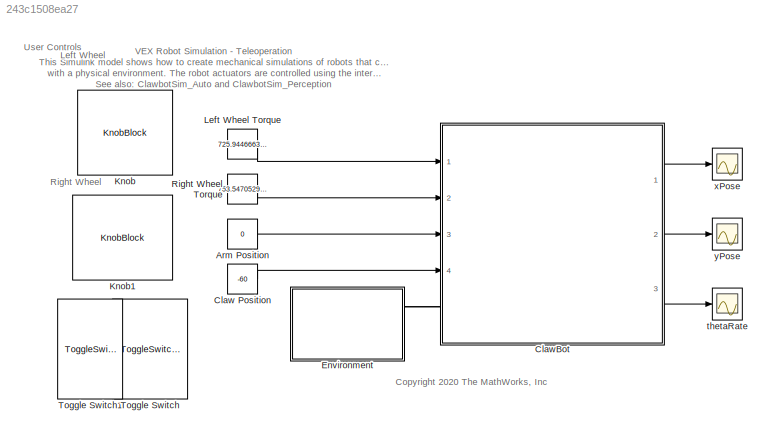
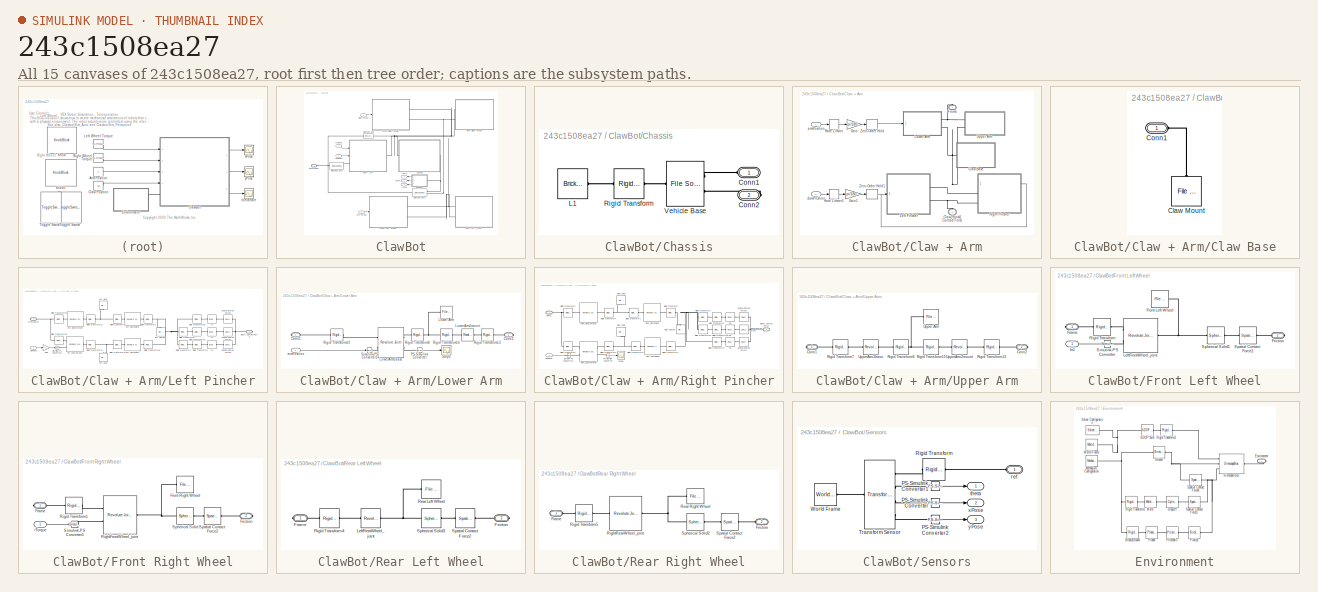
[diagram: thumbnail index - all 15 canvases of the model, root first then tree order]
MODEL slx_243c1508ea27
KIND model
CONFIG AbsTol = auto
CONFIG EnableMultiTasking = off
CONFIG FixedStep = auto
CONFIG MaxStep = auto
CONFIG MinStep = auto
CONFIG RelTol = 1e-3
CONFIG SampleTimeConstraint = Unconstrained
CONFIG Solver = VariableStepAuto
CONFIG SolverName = VariableStepAuto
CONFIG StartTime = 0.0
CONFIG StopTime = 10.0
BLOCK [Constant] Arm Position
  Value = 0
BLOCK [Constant] Claw Position
  Value = -60
BLOCK [SubSystem] ClawBot
  Ports = [4, 3, 0, 0, 0, 1]
  RequestExecContextInheritance = off
BLOCK [SubSystem] ClawBot/Chassis
  Ports = [0, 0, 0, 0, 0, 1, 1]
  RequestExecContextInheritance = off
BLOCK [PMIOPort] ClawBot/Chassis/Conn1
  Side = Left
BLOCK [PMIOPort] ClawBot/Chassis/Conn2
  Port = 2
  Side = Right
BLOCK [Reference] ClawBot/Chassis/L1  REF=sm_lib/Body Elements/Brick Solid
  Ports = [0, 0, 0, 0, 0, 1]
  SourceBlock = sm_lib/Body Elements/Brick Solid
  SourceProductBaseCode = MS
  SourceProductName = Simscape Multibody
  SourceType = Brick Solid
BLOCK [Reference] ClawBot/Chassis/Rigid Transform  REF=sm_lib/Frames and
Transforms/Rigid
Transform
  Ports = [0, 0, 0, 0, 0, 1, 1]
  SourceBlock = sm_lib/Frames and\nTransforms/Rigid\nTransform
  SourceProductBaseCode = MS
  SourceProductName = Simscape Multibody
  SourceType = Rigid\nTransform
BLOCK [Reference] ClawBot/Chassis/Vehicle Base  REF=sm_lib/Body Elements/File Solid
  Ports = [0, 0, 0, 0, 0, 2, 1]
  SourceBlock = sm_lib/Body Elements/File Solid
  SourceProductBaseCode = MS
  SourceProductName = Simscape Multibody
  SourceType = File Solid
BLOCK [SubSystem] ClawBot/Claw + Arm
  Ports = [2, 0, 0, 0, 0, 1, 1]
  RequestExecContextInheritance = off
BLOCK [SubSystem] ClawBot/Claw + Arm/Claw Base
  Ports = [0, 0, 0, 0, 0, 1]
  RequestExecContextInheritance = off
BLOCK [Reference] ClawBot/Claw + Arm/Claw Base/Claw Mount  REF=sm_lib/Body Elements/File Solid
  Ports = [0, 0, 0, 0, 0, 1]
  SourceBlock = sm_lib/Body Elements/File Solid
  SourceProductBaseCode = MS
  SourceProductName = Simscape Multibody
  SourceType = File Solid
BLOCK [PMIOPort] ClawBot/Claw + Arm/Claw Base/Conn1
  Side = Left
BLOCK [PMIOPort] ClawBot/Claw + Arm/Claw2Block1 Contact Force
  Side = Left
BLOCK [PMIOPort] ClawBot/Claw + Arm/Frame
  Port = 2
  Side = Right
BLOCK [Gain] ClawBot/Claw + Arm/Gain
  Gain = pi/180
  OutDataTypeStr = Inherit: Inherit via internal rule
  ParamDataTypeStr = Inherit: Inherit via internal rule
  SaturateOnIntegerOverflow = off
BLOCK [Gain] ClawBot/Claw + Arm/Gain1
  Gain = pi/180
  OutDataTypeStr = Inherit: Inherit via internal rule
  ParamDataTypeStr = Inherit: Inherit via internal rule
  SaturateOnIntegerOverflow = off
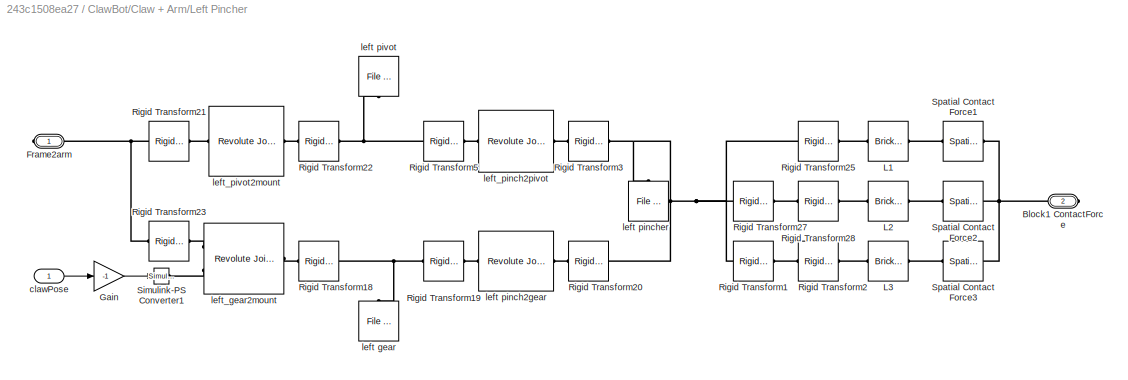
BLOCK [SubSystem] ClawBot/Claw + Arm/Left Pincher
  Ports = [1, 0, 0, 0, 0, 0, 2]
  RequestExecContextInheritance = off
BLOCK [PMIOPort] ClawBot/Claw + Arm/Left Pincher/Block1 ContactForce
  Port = 2
  Side = Right
BLOCK [PMIOPort] ClawBot/Claw + Arm/Left Pincher/Frame2arm
  Side = Right
BLOCK [Gain] ClawBot/Claw + Arm/Left Pincher/Gain
  Gain = -1
  OutDataTypeStr = Inherit: Inherit via internal rule
  ParamDataTypeStr = Inherit: Inherit via internal rule
  SaturateOnIntegerOverflow = off
BLOCK [Reference] ClawBot/Claw + Arm/Left Pincher/L1  REF=sm_lib/Body Elements/Brick Solid
  Ports = [0, 0, 0, 0, 0, 1, 1]
  SourceBlock = sm_lib/Body Elements/Brick Solid
  SourceProductBaseCode = MS
  SourceProductName = Simscape Multibody
  SourceType = Brick Solid
BLOCK [Reference] ClawBot/Claw + Arm/Left Pincher/L2  REF=sm_lib/Body Elements/Brick Solid
  Ports = [0, 0, 0, 0, 0, 1, 1]
  SourceBlock = sm_lib/Body Elements/Brick Solid
  SourceProductBaseCode = MS
  SourceProductName = Simscape Multibody
  SourceType = Brick Solid
BLOCK [Reference] ClawBot/Claw + Arm/Left Pincher/L3  REF=sm_lib/Body Elements/Brick Solid
  Ports = [0, 0, 0, 0, 0, 1, 1]
  SourceBlock = sm_lib/Body Elements/Brick Solid
  SourceProductBaseCode = MS
  SourceProductName = Simscape Multibody
  SourceType = Brick Solid
BLOCK [Reference] ClawBot/Claw + Arm/Left Pincher/Rigid Transform1  REF=sm_lib/Frames and
Transforms/Rigid
Transform
  Ports = [0, 0, 0, 0, 0, 1, 1]
  SourceBlock = sm_lib/Frames and\nTransforms/Rigid\nTransform
  SourceProductBaseCode = MS
  SourceProductName = Simscape Multibody
  SourceType = Rigid\nTransform
BLOCK [Reference] ClawBot/Claw + Arm/Left Pincher/Rigid Transform18  REF=sm_lib/Frames and
Transforms/Rigid
Transform
  Ports = [0, 0, 0, 0, 0, 1, 1]
  SourceBlock = sm_lib/Frames and\nTransforms/Rigid\nTransform
  SourceProductBaseCode = MS
  SourceProductName = Simscape Multibody
  SourceType = Rigid\nTransform
BLOCK [Reference] ClawBot/Claw + Arm/Left Pincher/Rigid Transform19  REF=sm_lib/Frames and
Transforms/Rigid
Transform
  Ports = [0, 0, 0, 0, 0, 1, 1]
  SourceBlock = sm_lib/Frames and\nTransforms/Rigid\nTransform
  SourceProductBaseCode = MS
  SourceProductName = Simscape Multibody
  SourceType = Rigid\nTransform
BLOCK [Reference] ClawBot/Claw + Arm/Left Pincher/Rigid Transform2  REF=sm_lib/Frames and
Transforms/Rigid
Transform
  Ports = [0, 0, 0, 0, 0, 1, 1]
  SourceBlock = sm_lib/Frames and\nTransforms/Rigid\nTransform
  SourceProductBaseCode = MS
  SourceProductName = Simscape Multibody
  SourceType = Rigid\nTransform
BLOCK [Reference] ClawBot/Claw + Arm/Left Pincher/Rigid Transform20  REF=sm_lib/Frames and
Transforms/Rigid
Transform
  Ports = [0, 0, 0, 0, 0, 1, 1]
  SourceBlock = sm_lib/Frames and\nTransforms/Rigid\nTransform
  SourceProductBaseCode = MS
  SourceProductName = Simscape Multibody
  SourceType = Rigid\nTransform
BLOCK [Reference] ClawBot/Claw + Arm/Left Pincher/Rigid Transform21  REF=sm_lib/Frames and
Transforms/Rigid
Transform
  Ports = [0, 0, 0, 0, 0, 1, 1]
  SourceBlock = sm_lib/Frames and\nTransforms/Rigid\nTransform
  SourceProductBaseCode = MS
  SourceProductName = Simscape Multibody
  SourceType = Rigid\nTransform
BLOCK [Reference] ClawBot/Claw + Arm/Left Pincher/Rigid Transform22  REF=sm_lib/Frames and
Transforms/Rigid
Transform
  Ports = [0, 0, 0, 0, 0, 1, 1]
  SourceBlock = sm_lib/Frames and\nTransforms/Rigid\nTransform
  SourceProductBaseCode = MS
  SourceProductName = Simscape Multibody
  SourceType = Rigid\nTransform
BLOCK [Reference] ClawBot/Claw + Arm/Left Pincher/Rigid Transform23  REF=sm_lib/Frames and
Transforms/Rigid
Transform
  Ports = [0, 0, 0, 0, 0, 1, 1]
  SourceBlock = sm_lib/Frames and\nTransforms/Rigid\nTransform
  SourceProductBaseCode = MS
  SourceProductName = Simscape Multibody
  SourceType = Rigid\nTransform
BLOCK [Reference] ClawBot/Claw + Arm/Left Pincher/Rigid Transform25  REF=sm_lib/Frames and
Transforms/Rigid
Transform
  Ports = [0, 0, 0, 0, 0, 1, 1]
  SourceBlock = sm_lib/Frames and\nTransforms/Rigid\nTransform
  SourceProductBaseCode = MS
  SourceProductName = Simscape Multibody
  SourceType = Rigid\nTransform
BLOCK [Reference] ClawBot/Claw + Arm/Left Pincher/Rigid Transform27  REF=sm_lib/Frames and
Transforms/Rigid
Transform
  Ports = [0, 0, 0, 0, 0, 1, 1]
  SourceBlock = sm_lib/Frames and\nTransforms/Rigid\nTransform
  SourceProductBaseCode = MS
  SourceProductName = Simscape Multibody
  SourceType = Rigid\nTransform
BLOCK [Reference] ClawBot/Claw + Arm/Left Pincher/Rigid Transform28  REF=sm_lib/Frames and
Transforms/Rigid
Transform
  Ports = [0, 0, 0, 0, 0, 1, 1]
  SourceBlock = sm_lib/Frames and\nTransforms/Rigid\nTransform
  SourceProductBaseCode = MS
  SourceProductName = Simscape Multibody
  SourceType = Rigid\nTransform
BLOCK [Reference] ClawBot/Claw + Arm/Left Pincher/Rigid Transform3  REF=sm_lib/Frames and
Transforms/Rigid
Transform
  Ports = [0, 0, 0, 0, 0, 1, 1]
  SourceBlock = sm_lib/Frames and\nTransforms/Rigid\nTransform
  SourceProductBaseCode = MS
  SourceProductName = Simscape Multibody
  SourceType = Rigid\nTransform
BLOCK [Reference] ClawBot/Claw + Arm/Left Pincher/Rigid Transform5  REF=sm_lib/Frames and
Transforms/Rigid
Transform
  Ports = [0, 0, 0, 0, 0, 1, 1]
  SourceBlock = sm_lib/Frames and\nTransforms/Rigid\nTransform
  SourceProductBaseCode = MS
  SourceProductName = Simscape Multibody
  SourceType = Rigid\nTransform
BLOCK [Reference] ClawBot/Claw + Arm/Left Pincher/Simulink-PS Converter1  REF=nesl_utility/Simulink-PS
Converter
  Ports = [1, 0, 0, 0, 0, 0, 1]
  SourceBlock = nesl_utility/Simulink-PS\nConverter
  SourceProductBaseCode = SS
  SourceProductName = Simscape
  SourceType = Simulink-PS\nConverter
BLOCK [Reference] ClawBot/Claw + Arm/Left Pincher/Spatial Contact Force1  REF=sm_lib/Forces and
Torques/Spatial
Contact Force
  Ports = [0, 0, 0, 0, 0, 1, 1]
  SourceBlock = sm_lib/Forces and\nTorques/Spatial\nContact Force
  SourceProductBaseCode = MS
  SourceProductName = Simscape Multibody
  SourceType = Spatial\nContact Force
BLOCK [Reference] ClawBot/Claw + Arm/Left Pincher/Spatial Contact Force2  REF=sm_lib/Forces and
Torques/Spatial
Contact Force
  Ports = [0, 0, 0, 0, 0, 1, 1]
  SourceBlock = sm_lib/Forces and\nTorques/Spatial\nContact Force
  SourceProductBaseCode = MS
  SourceProductName = Simscape Multibody
  SourceType = Spatial\nContact Force
BLOCK [Reference] ClawBot/Claw + Arm/Left Pincher/Spatial Contact Force3  REF=sm_lib/Forces and
Torques/Spatial
Contact Force
  Ports = [0, 0, 0, 0, 0, 1, 1]
  SourceBlock = sm_lib/Forces and\nTorques/Spatial\nContact Force
  SourceProductBaseCode = MS
  SourceProductName = Simscape Multibody
  SourceType = Spatial\nContact Force
BLOCK [Inport] ClawBot/Claw + Arm/Left Pincher/clawPose
  IconDisplay = Port number
BLOCK [Reference] ClawBot/Claw + Arm/Left Pincher/left gear  REF=sm_lib/Body Elements/File Solid
  Ports = [0, 0, 0, 0, 0, 1]
  SourceBlock = sm_lib/Body Elements/File Solid
  SourceProductBaseCode = MS
  SourceProductName = Simscape Multibody
  SourceType = File Solid
BLOCK [Reference] ClawBot/Claw + Arm/Left Pincher/left pinch2gear  REF=sm_lib/Joints/Revolute Joint
  Ports = [0, 0, 0, 0, 0, 1, 1]
  SourceBlock = sm_lib/Joints/Revolute Joint
  SourceProductBaseCode = MS
  SourceProductName = Simscape Multibody
  SourceType = Revolute Joint
BLOCK [Reference] ClawBot/Claw + Arm/Left Pincher/left pincher  REF=sm_lib/Body Elements/File Solid
  Ports = [0, 0, 0, 0, 0, 1]
  SourceBlock = sm_lib/Body Elements/File Solid
  SourceProductBaseCode = MS
  SourceProductName = Simscape Multibody
  SourceType = File Solid
BLOCK [Reference] ClawBot/Claw + Arm/Left Pincher/left pivot  REF=sm_lib/Body Elements/File Solid
  Ports = [0, 0, 0, 0, 0, 1]
  SourceBlock = sm_lib/Body Elements/File Solid
  SourceProductBaseCode = MS
  SourceProductName = Simscape Multibody
  SourceType = File Solid
BLOCK [Reference] ClawBot/Claw + Arm/Left Pincher/left_gear2mount  REF=sm_lib/Joints/Revolute Joint
  Ports = [0, 0, 0, 0, 0, 2, 1]
  SourceBlock = sm_lib/Joints/Revolute Joint
  SourceProductBaseCode = MS
  SourceProductName = Simscape Multibody
  SourceType = Revolute Joint
BLOCK [Reference] ClawBot/Claw + Arm/Left Pincher/left_pinch2pivot  REF=sm_lib/Joints/Revolute Joint
  Ports = [0, 0, 0, 0, 0, 1, 1]
  SourceBlock = sm_lib/Joints/Revolute Joint
  SourceProductBaseCode = MS
  SourceProductName = Simscape Multibody
  SourceType = Revolute Joint
BLOCK [Reference] ClawBot/Claw + Arm/Left Pincher/left_pivot2mount  REF=sm_lib/Joints/Revolute Joint
  Ports = [0, 0, 0, 0, 0, 1, 1]
  SourceBlock = sm_lib/Joints/Revolute Joint
  SourceProductBaseCode = MS
  SourceProductName = Simscape Multibody
  SourceType = Revolute Joint
BLOCK [SubSystem] ClawBot/Claw + Arm/Lower Arm
  Ports = [1, 0, 0, 0, 0, 0, 2]
  RequestExecContextInheritance = off
BLOCK [PMIOPort] ClawBot/Claw + Arm/Lower Arm/Conn1
  Side = Right
BLOCK [PMIOPort] ClawBot/Claw + Arm/Lower Arm/Conn2
  Port = 2
  Side = Right
BLOCK [Reference] ClawBot/Claw + Arm/Lower Arm/Lower Arm  REF=sm_lib/Body Elements/File Solid
  Ports = [0, 0, 0, 0, 0, 1]
  SourceBlock = sm_lib/Body Elements/File Solid
  SourceProductBaseCode = MS
  SourceProductName = Simscape Multibody
  SourceType = File Solid
BLOCK [Reference] ClawBot/Claw + Arm/Lower Arm/LowerArm2base  REF=sm_lib/Joints/Revolute Joint
  Ports = [0, 0, 0, 0, 0, 2, 2]
  SourceBlock = sm_lib/Joints/Revolute Joint
  SourceProductBaseCode = MS
  SourceProductName = Simscape Multibody
  SourceType = Revolute Joint
BLOCK [Reference] ClawBot/Claw + Arm/Lower Arm/LowerArm2mount  REF=sm_lib/Joints/Revolute Joint
  Ports = [0, 0, 0, 0, 0, 1, 1]
  SourceBlock = sm_lib/Joints/Revolute Joint
  SourceProductBaseCode = MS
  SourceProductName = Simscape Multibody
  SourceType = Revolute Joint
BLOCK [Reference] ClawBot/Claw + Arm/Lower Arm/PS-Simulink Converter  REF=nesl_utility/PS-Simulink
Converter
  Ports = [0, 1, 0, 0, 0, 1]
  SourceBlock = nesl_utility/PS-Simulink\nConverter
  SourceProductBaseCode = SS
  SourceProductName = Simscape
  SourceType = PS-Simulink\nConverter
BLOCK [Reference] ClawBot/Claw + Arm/Lower Arm/Rigid Transform10  REF=sm_lib/Frames and
Transforms/Rigid
Transform
  Ports = [0, 0, 0, 0, 0, 1, 1]
  SourceBlock = sm_lib/Frames and\nTransforms/Rigid\nTransform
  SourceProductBaseCode = MS
  SourceProductName = Simscape Multibody
  SourceType = Rigid\nTransform
BLOCK [Reference] ClawBot/Claw + Arm/Lower Arm/Rigid Transform13  REF=sm_lib/Frames and
Transforms/Rigid
Transform
  Ports = [0, 0, 0, 0, 0, 1, 1]
  SourceBlock = sm_lib/Frames and\nTransforms/Rigid\nTransform
  SourceProductBaseCode = MS
  SourceProductName = Simscape Multibody
  SourceType = Rigid\nTransform
BLOCK [Reference] ClawBot/Claw + Arm/Lower Arm/Rigid Transform16  REF=sm_lib/Frames and
Transforms/Rigid
Transform
  Ports = [0, 0, 0, 0, 0, 1, 1]
  SourceBlock = sm_lib/Frames and\nTransforms/Rigid\nTransform
  SourceProductBaseCode = MS
  SourceProductName = Simscape Multibody
  SourceType = Rigid\nTransform
BLOCK [Reference] ClawBot/Claw + Arm/Lower Arm/Rigid Transform9  REF=sm_lib/Frames and
Transforms/Rigid
Transform
  Ports = [0, 0, 0, 0, 0, 1, 1]
  SourceBlock = sm_lib/Frames and\nTransforms/Rigid\nTransform
  SourceProductBaseCode = MS
  SourceProductName = Simscape Multibody
  SourceType = Rigid\nTransform
BLOCK [Scope] ClawBot/Claw + Arm/Lower Arm/Scope
  Floating = off
  NumInputPorts = 1
  Ports = [1]
  ScopeSpecificationString = Simulink.scopes.TimeScopeBlockCfg('CurrentConfiguration', extmgr.ConfigurationSet(extmgr.Configuration('Core','General UI',true),extmgr.Configuration('Core','Source UI',true),extmgr.Configuration('Sources','WiredSimulink',true),extmgr.Configuration('Visuals','Time Domain',true,'SerializedDisplays',{struct('MinYLimReal','-113.24614','MaxYLimReal','845.52442','YLabelReal','','MinYLimMag',' 0.00000',...<+1382ch>
BLOCK [Reference] ClawBot/Claw + Arm/Lower Arm/Simulink-PS Converter2  REF=nesl_utility/Simulink-PS
Converter
  Ports = [1, 0, 0, 0, 0, 0, 1]
  SourceBlock = nesl_utility/Simulink-PS\nConverter
  SourceProductBaseCode = SS
  SourceProductName = Simscape
  SourceType = Simulink-PS\nConverter
BLOCK [Inport] ClawBot/Claw + Arm/Lower Arm/armPosition
  IconDisplay = Port number
BLOCK [RateLimiter] ClawBot/Claw + Arm/Rate Limiter
  FallingSlewLimit = -25
  RisingSlewLimit = 25
  SampleTimeMode = inherited
BLOCK [RateLimiter] ClawBot/Claw + Arm/Rate Limiter1
  FallingSlewLimit = -1000
  RisingSlewLimit = 1000
  SampleTimeMode = inherited
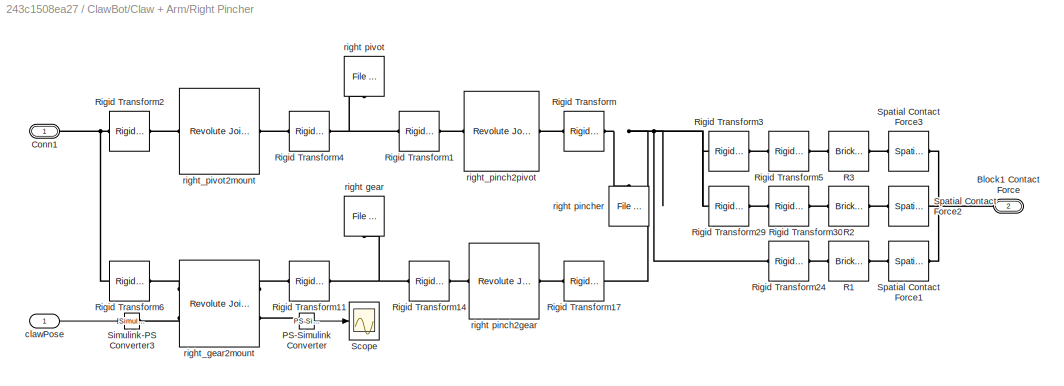
BLOCK [SubSystem] ClawBot/Claw + Arm/Right Pincher
  PortSchema = {"entries":[{"content":{"sides":[{"content":{"connectorIds":["LConn1","LConn2"]},"type":"ConnectorPlacement.EquallySpacedRectSide","uuid":"c31b3bd7-e4f0-40c1-8d05-2dd0f52601d0"},{"content":{"connectorIds":["In1"],"side":"RIGHT"},"type":"ConnectorPlacement.EquallySpacedRectSide","uuid":"b782f98b-67c6-482a-abad-dffd6dc88c6a"},{"content":{"connectorIds":[],"side":"TOP"},"type":"ConnectorPlacement.Equ...<+253ch>
  Ports = [1, 0, 0, 0, 0, 2]
  RequestExecContextInheritance = off
BLOCK [PMIOPort] ClawBot/Claw + Arm/Right Pincher/Block1 Contact Force
  Port = 2
  Side = Left
BLOCK [PMIOPort] ClawBot/Claw + Arm/Right Pincher/Conn1
  Side = Left
BLOCK [Reference] ClawBot/Claw + Arm/Right Pincher/PS-Simulink Converter  REF=nesl_utility/PS-Simulink
Converter
  Ports = [0, 1, 0, 0, 0, 1]
  SourceBlock = nesl_utility/PS-Simulink\nConverter
  SourceProductBaseCode = SS
  SourceProductName = Simscape
  SourceType = PS-Simulink\nConverter
BLOCK [Reference] ClawBot/Claw + Arm/Right Pincher/R1  REF=sm_lib/Body Elements/Brick Solid
  Ports = [0, 0, 0, 0, 0, 1, 1]
  SourceBlock = sm_lib/Body Elements/Brick Solid
  SourceProductBaseCode = MS
  SourceProductName = Simscape Multibody
  SourceType = Brick Solid
BLOCK [Reference] ClawBot/Claw + Arm/Right Pincher/R2  REF=sm_lib/Body Elements/Brick Solid
  Ports = [0, 0, 0, 0, 0, 1, 1]
  SourceBlock = sm_lib/Body Elements/Brick Solid
  SourceProductBaseCode = MS
  SourceProductName = Simscape Multibody
  SourceType = Brick Solid
BLOCK [Reference] ClawBot/Claw + Arm/Right Pincher/R3  REF=sm_lib/Body Elements/Brick Solid
  Ports = [0, 0, 0, 0, 0, 1, 1]
  SourceBlock = sm_lib/Body Elements/Brick Solid
  SourceProductBaseCode = MS
  SourceProductName = Simscape Multibody
  SourceType = Brick Solid
BLOCK [Reference] ClawBot/Claw + Arm/Right Pincher/Rigid Transform  REF=sm_lib/Frames and
Transforms/Rigid
Transform
  Ports = [0, 0, 0, 0, 0, 1, 1]
  SourceBlock = sm_lib/Frames and\nTransforms/Rigid\nTransform
  SourceProductBaseCode = MS
  SourceProductName = Simscape Multibody
  SourceType = Rigid\nTransform
BLOCK [Reference] ClawBot/Claw + Arm/Right Pincher/Rigid Transform1  REF=sm_lib/Frames and
Transforms/Rigid
Transform
  Ports = [0, 0, 0, 0, 0, 1, 1]
  SourceBlock = sm_lib/Frames and\nTransforms/Rigid\nTransform
  SourceProductBaseCode = MS
  SourceProductName = Simscape Multibody
  SourceType = Rigid\nTransform
BLOCK [Reference] ClawBot/Claw + Arm/Right Pincher/Rigid Transform11  REF=sm_lib/Frames and
Transforms/Rigid
Transform
  Ports = [0, 0, 0, 0, 0, 1, 1]
  SourceBlock = sm_lib/Frames and\nTransforms/Rigid\nTransform
  SourceProductBaseCode = MS
  SourceProductName = Simscape Multibody
  SourceType = Rigid\nTransform
BLOCK [Reference] ClawBot/Claw + Arm/Right Pincher/Rigid Transform14  REF=sm_lib/Frames and
Transforms/Rigid
Transform
  Ports = [0, 0, 0, 0, 0, 1, 1]
  SourceBlock = sm_lib/Frames and\nTransforms/Rigid\nTransform
  SourceProductBaseCode = MS
  SourceProductName = Simscape Multibody
  SourceType = Rigid\nTransform
BLOCK [Reference] ClawBot/Claw + Arm/Right Pincher/Rigid Transform17  REF=sm_lib/Frames and
Transforms/Rigid
Transform
  Ports = [0, 0, 0, 0, 0, 1, 1]
  SourceBlock = sm_lib/Frames and\nTransforms/Rigid\nTransform
  SourceProductBaseCode = MS
  SourceProductName = Simscape Multibody
  SourceType = Rigid\nTransform
BLOCK [Reference] ClawBot/Claw + Arm/Right Pincher/Rigid Transform2  REF=sm_lib/Frames and
Transforms/Rigid
Transform
  Ports = [0, 0, 0, 0, 0, 1, 1]
  SourceBlock = sm_lib/Frames and\nTransforms/Rigid\nTransform
  SourceProductBaseCode = MS
  SourceProductName = Simscape Multibody
  SourceType = Rigid\nTransform
BLOCK [Reference] ClawBot/Claw + Arm/Right Pincher/Rigid Transform24  REF=sm_lib/Frames and
Transforms/Rigid
Transform
  Ports = [0, 0, 0, 0, 0, 1, 1]
  SourceBlock = sm_lib/Frames and\nTransforms/Rigid\nTransform
  SourceProductBaseCode = MS
  SourceProductName = Simscape Multibody
  SourceType = Rigid\nTransform
BLOCK [Reference] ClawBot/Claw + Arm/Right Pincher/Rigid Transform29  REF=sm_lib/Frames and
Transforms/Rigid
Transform
  Ports = [0, 0, 0, 0, 0, 1, 1]
  SourceBlock = sm_lib/Frames and\nTransforms/Rigid\nTransform
  SourceProductBaseCode = MS
  SourceProductName = Simscape Multibody
  SourceType = Rigid\nTransform
BLOCK [Reference] ClawBot/Claw + Arm/Right Pincher/Rigid Transform3  REF=sm_lib/Frames and
Transforms/Rigid
Transform
  Ports = [0, 0, 0, 0, 0, 1, 1]
  SourceBlock = sm_lib/Frames and\nTransforms/Rigid\nTransform
  SourceProductBaseCode = MS
  SourceProductName = Simscape Multibody
  SourceType = Rigid\nTransform
BLOCK [Reference] ClawBot/Claw + Arm/Right Pincher/Rigid Transform30  REF=sm_lib/Frames and
Transforms/Rigid
Transform
  Ports = [0, 0, 0, 0, 0, 1, 1]
  SourceBlock = sm_lib/Frames and\nTransforms/Rigid\nTransform
  SourceProductBaseCode = MS
  SourceProductName = Simscape Multibody
  SourceType = Rigid\nTransform
BLOCK [Reference] ClawBot/Claw + Arm/Right Pincher/Rigid Transform4  REF=sm_lib/Frames and
Transforms/Rigid
Transform
  Ports = [0, 0, 0, 0, 0, 1, 1]
  SourceBlock = sm_lib/Frames and\nTransforms/Rigid\nTransform
  SourceProductBaseCode = MS
  SourceProductName = Simscape Multibody
  SourceType = Rigid\nTransform
BLOCK [Reference] ClawBot/Claw + Arm/Right Pincher/Rigid Transform5  REF=sm_lib/Frames and
Transforms/Rigid
Transform
  Ports = [0, 0, 0, 0, 0, 1, 1]
  SourceBlock = sm_lib/Frames and\nTransforms/Rigid\nTransform
  SourceProductBaseCode = MS
  SourceProductName = Simscape Multibody
  SourceType = Rigid\nTransform
BLOCK [Reference] ClawBot/Claw + Arm/Right Pincher/Rigid Transform6  REF=sm_lib/Frames and
Transforms/Rigid
Transform
  Ports = [0, 0, 0, 0, 0, 1, 1]
  SourceBlock = sm_lib/Frames and\nTransforms/Rigid\nTransform
  SourceProductBaseCode = MS
  SourceProductName = Simscape Multibody
  SourceType = Rigid\nTransform
BLOCK [Scope] ClawBot/Claw + Arm/Right Pincher/Scope
  Floating = off
  NumInputPorts = 1
  Ports = [1]
  ScopeSpecificationString = Simulink.scopes.TimeScopeBlockCfg('CurrentConfiguration', extmgr.ConfigurationSet(extmgr.Configuration('Core','General UI',true),extmgr.Configuration('Core','Source UI',true),extmgr.Configuration('Sources','WiredSimulink',true,'DataLoggingVariableName','ScopeData4'),extmgr.Configuration('Visuals','Time Domain',true,'SerializedDisplays',{struct('MinYLimReal','-826.00645','MaxYLimReal','891.95562','...<+1422ch>
BLOCK [Reference] ClawBot/Claw + Arm/Right Pincher/Simulink-PS Converter3  REF=nesl_utility/Simulink-PS
Converter
  Ports = [1, 0, 0, 0, 0, 0, 1]
  SourceBlock = nesl_utility/Simulink-PS\nConverter
  SourceProductBaseCode = SS
  SourceProductName = Simscape
  SourceType = Simulink-PS\nConverter
BLOCK [Reference] ClawBot/Claw + Arm/Right Pincher/Spatial Contact Force1  REF=sm_lib/Forces and
Torques/Spatial
Contact Force
  Ports = [0, 0, 0, 0, 0, 1, 1]
  SourceBlock = sm_lib/Forces and\nTorques/Spatial\nContact Force
  SourceProductBaseCode = MS
  SourceProductName = Simscape Multibody
  SourceType = Spatial\nContact Force
BLOCK [Reference] ClawBot/Claw + Arm/Right Pincher/Spatial Contact Force2  REF=sm_lib/Forces and
Torques/Spatial
Contact Force
  Ports = [0, 0, 0, 0, 0, 1, 1]
  SourceBlock = sm_lib/Forces and\nTorques/Spatial\nContact Force
  SourceProductBaseCode = MS
  SourceProductName = Simscape Multibody
  SourceType = Spatial\nContact Force
BLOCK [Reference] ClawBot/Claw + Arm/Right Pincher/Spatial Contact Force3  REF=sm_lib/Forces and
Torques/Spatial
Contact Force
  Ports = [0, 0, 0, 0, 0, 1, 1]
  SourceBlock = sm_lib/Forces and\nTorques/Spatial\nContact Force
  SourceProductBaseCode = MS
  SourceProductName = Simscape Multibody
  SourceType = Spatial\nContact Force
BLOCK [Inport] ClawBot/Claw + Arm/Right Pincher/clawPose
  IconDisplay = Port number
BLOCK [Reference] ClawBot/Claw + Arm/Right Pincher/right gear  REF=sm_lib/Body Elements/File Solid
  Ports = [0, 0, 0, 0, 0, 1]
  SourceBlock = sm_lib/Body Elements/File Solid
  SourceProductBaseCode = MS
  SourceProductName = Simscape Multibody
  SourceType = File Solid
BLOCK [Reference] ClawBot/Claw + Arm/Right Pincher/right pinch2gear  REF=sm_lib/Joints/Revolute Joint
  Ports = [0, 0, 0, 0, 0, 1, 1]
  SourceBlock = sm_lib/Joints/Revolute Joint
  SourceProductBaseCode = MS
  SourceProductName = Simscape Multibody
  SourceType = Revolute Joint
BLOCK [Reference] ClawBot/Claw + Arm/Right Pincher/right pincher  REF=sm_lib/Body Elements/File Solid
  Ports = [0, 0, 0, 0, 0, 1]
  SourceBlock = sm_lib/Body Elements/File Solid
  SourceProductBaseCode = MS
  SourceProductName = Simscape Multibody
  SourceType = File Solid
BLOCK [Reference] ClawBot/Claw + Arm/Right Pincher/right pivot  REF=sm_lib/Body Elements/File Solid
  Ports = [0, 0, 0, 0, 0, 1]
  SourceBlock = sm_lib/Body Elements/File Solid
  SourceProductBaseCode = MS
  SourceProductName = Simscape Multibody
  SourceType = File Solid
BLOCK [Reference] ClawBot/Claw + Arm/Right Pincher/right_gear2mount  REF=sm_lib/Joints/Revolute Joint
  Ports = [0, 0, 0, 0, 0, 2, 2]
  SourceBlock = sm_lib/Joints/Revolute Joint
  SourceProductBaseCode = MS
  SourceProductName = Simscape Multibody
  SourceType = Revolute Joint
BLOCK [Reference] ClawBot/Claw + Arm/Right Pincher/right_pinch2pivot  REF=sm_lib/Joints/Revolute Joint
  Ports = [0, 0, 0, 0, 0, 1, 1]
  SourceBlock = sm_lib/Joints/Revolute Joint
  SourceProductBaseCode = MS
  SourceProductName = Simscape Multibody
  SourceType = Revolute Joint
BLOCK [Reference] ClawBot/Claw + Arm/Right Pincher/right_pivot2mount  REF=sm_lib/Joints/Revolute Joint
  Ports = [0, 0, 0, 0, 0, 1, 1]
  SourceBlock = sm_lib/Joints/Revolute Joint
  SourceProductBaseCode = MS
  SourceProductName = Simscape Multibody
  SourceType = Revolute Joint
BLOCK [SubSystem] ClawBot/Claw + Arm/Upper Arm
  Ports = [0, 0, 0, 0, 0, 0, 2]
  RequestExecContextInheritance = off
BLOCK [PMIOPort] ClawBot/Claw + Arm/Upper Arm/Conn1
  Side = Right
BLOCK [PMIOPort] ClawBot/Claw + Arm/Upper Arm/Conn2
  Port = 2
  Side = Right
BLOCK [Reference] ClawBot/Claw + Arm/Upper Arm/Rigid Transform12  REF=sm_lib/Frames and
Transforms/Rigid
Transform
  Ports = [0, 0, 0, 0, 0, 1, 1]
  SourceBlock = sm_lib/Frames and\nTransforms/Rigid\nTransform
  SourceProductBaseCode = MS
  SourceProductName = Simscape Multibody
  SourceType = Rigid\nTransform
BLOCK [Reference] ClawBot/Claw + Arm/Upper Arm/Rigid Transform15  REF=sm_lib/Frames and
Transforms/Rigid
Transform
  Ports = [0, 0, 0, 0, 0, 1, 1]
  SourceBlock = sm_lib/Frames and\nTransforms/Rigid\nTransform
  SourceProductBaseCode = MS
  SourceProductName = Simscape Multibody
  SourceType = Rigid\nTransform
BLOCK [Reference] ClawBot/Claw + Arm/Upper Arm/Rigid Transform7  REF=sm_lib/Frames and
Transforms/Rigid
Transform
  Ports = [0, 0, 0, 0, 0, 1, 1]
  SourceBlock = sm_lib/Frames and\nTransforms/Rigid\nTransform
  SourceProductBaseCode = MS
  SourceProductName = Simscape Multibody
  SourceType = Rigid\nTransform
BLOCK [Reference] ClawBot/Claw + Arm/Upper Arm/Rigid Transform8  REF=sm_lib/Frames and
Transforms/Rigid
Transform
  Ports = [0, 0, 0, 0, 0, 1, 1]
  SourceBlock = sm_lib/Frames and\nTransforms/Rigid\nTransform
  SourceProductBaseCode = MS
  SourceProductName = Simscape Multibody
  SourceType = Rigid\nTransform
BLOCK [Reference] ClawBot/Claw + Arm/Upper Arm/Upper Arm  REF=sm_lib/Body Elements/File Solid
  Ports = [0, 0, 0, 0, 0, 1]
  SourceBlock = sm_lib/Body Elements/File Solid
  SourceProductBaseCode = MS
  SourceProductName = Simscape Multibody
  SourceType = File Solid
BLOCK [Reference] ClawBot/Claw + Arm/Upper Arm/UpperArm2base  REF=sm_lib/Joints/Revolute Joint
  Ports = [0, 0, 0, 0, 0, 1, 1]
  SourceBlock = sm_lib/Joints/Revolute Joint
  SourceProductBaseCode = MS
  SourceProductName = Simscape Multibody
  SourceType = Revolute Joint
BLOCK [Reference] ClawBot/Claw + Arm/Upper Arm/UpperArm2mount  REF=sm_lib/Joints/Revolute Joint
  Ports = [0, 0, 0, 0, 0, 1, 1]
  SourceBlock = sm_lib/Joints/Revolute Joint
  SourceProductBaseCode = MS
  SourceProductName = Simscape Multibody
  SourceType = Revolute Joint
BLOCK [ZeroOrderHold] ClawBot/Claw + Arm/Zero-Order Hold
  SampleTime = -1
BLOCK [ZeroOrderHold] ClawBot/Claw + Arm/Zero-Order Hold1
  SampleTime = -1
BLOCK [Inport] ClawBot/Claw + Arm/armPosition
  IconDisplay = Port number
BLOCK [Inport] ClawBot/Claw + Arm/clawPosition
  IconDisplay = Port number
  Port = 2
BLOCK [PMIOPort] ClawBot/Environment
  Side = Left
BLOCK [SubSystem] ClawBot/Front Left Wheel
  Ports = [1, 0, 0, 0, 0, 0, 2]
  RequestExecContextInheritance = off
BLOCK [PMIOPort] ClawBot/Front Left Wheel/Frame
  Side = Right
BLOCK [PMIOPort] ClawBot/Front Left Wheel/Friction
  Port = 2
  Side = Right
BLOCK [Reference] ClawBot/Front Left Wheel/Front Left Wheel  REF=sm_lib/Body Elements/File Solid
  Ports = [0, 0, 0, 0, 0, 1]
  SourceBlock = sm_lib/Body Elements/File Solid
  SourceProductBaseCode = MS
  SourceProductName = Simscape Multibody
  SourceType = File Solid
BLOCK [Inport] ClawBot/Front Left Wheel/In1
  IconDisplay = Port number
BLOCK [Reference] ClawBot/Front Left Wheel/LeftFrontWheel_joint  REF=sm_lib/Joints/Revolute Joint
  Ports = [0, 0, 0, 0, 0, 2, 1]
  SourceBlock = sm_lib/Joints/Revolute Joint
  SourceProductBaseCode = MS
  SourceProductName = Simscape Multibody
  SourceType = Revolute Joint
BLOCK [Reference] ClawBot/Front Left Wheel/Rigid Transform  REF=sm_lib/Frames and
Transforms/Rigid
Transform
  Ports = [0, 0, 0, 0, 0, 1, 1]
  SourceBlock = sm_lib/Frames and\nTransforms/Rigid\nTransform
  SourceProductBaseCode = MS
  SourceProductName = Simscape Multibody
  SourceType = Rigid\nTransform
BLOCK [Reference] ClawBot/Front Left Wheel/Simulink-PS Converter  REF=nesl_utility/Simulink-PS
Converter
  Ports = [1, 0, 0, 0, 0, 0, 1]
  SourceBlock = nesl_utility/Simulink-PS\nConverter
  SourceProductBaseCode = SS
  SourceProductName = Simscape
  SourceType = Simulink-PS\nConverter
BLOCK [Reference] ClawBot/Front Left Wheel/Spatial Contact Force2  REF=sm_lib/Forces and
Torques/Spatial
Contact Force
  Ports = [0, 0, 0, 0, 0, 1, 1]
  SourceBlock = sm_lib/Forces and\nTorques/Spatial\nContact Force
  SourceProductBaseCode = MS
  SourceProductName = Simscape Multibody
  SourceType = Spatial\nContact Force
BLOCK [Reference] ClawBot/Front Left Wheel/Spherical Solid1  REF=sm_lib/Body Elements/Spherical Solid
  Ports = [0, 0, 0, 0, 0, 1, 1]
  SourceBlock = sm_lib/Body Elements/Spherical Solid
  SourceProductBaseCode = MS
  SourceProductName = Simscape Multibody
  SourceType = Spherical Solid
BLOCK [SubSystem] ClawBot/Front Right Wheel
  Ports = [1, 0, 0, 0, 0, 0, 2]
  RequestExecContextInheritance = off
BLOCK [PMIOPort] ClawBot/Front Right Wheel/Frame
  Side = Right
BLOCK [PMIOPort] ClawBot/Front Right Wheel/Friction
  Port = 2
  Side = Right
BLOCK [Reference] ClawBot/Front Right Wheel/Front Right Wheel  REF=sm_lib/Body Elements/File Solid
  Ports = [0, 0, 0, 0, 0, 1]
  SourceBlock = sm_lib/Body Elements/File Solid
  SourceProductBaseCode = MS
  SourceProductName = Simscape Multibody
  SourceType = File Solid
BLOCK [Reference] ClawBot/Front Right Wheel/RightFrontWheel_joint  REF=sm_lib/Joints/Revolute Joint
  Ports = [0, 0, 0, 0, 0, 2, 1]
  SourceBlock = sm_lib/Joints/Revolute Joint
  SourceProductBaseCode = MS
  SourceProductName = Simscape Multibody
  SourceType = Revolute Joint
BLOCK [Reference] ClawBot/Front Right Wheel/Rigid Transform1  REF=sm_lib/Frames and
Transforms/Rigid
Transform
  Ports = [0, 0, 0, 0, 0, 1, 1]
  SourceBlock = sm_lib/Frames and\nTransforms/Rigid\nTransform
  SourceProductBaseCode = MS
  SourceProductName = Simscape Multibody
  SourceType = Rigid\nTransform
BLOCK [Reference] ClawBot/Front Right Wheel/Simulink-PS Converter1  REF=nesl_utility/Simulink-PS
Converter
  Ports = [1, 0, 0, 0, 0, 0, 1]
  SourceBlock = nesl_utility/Simulink-PS\nConverter
  SourceProductBaseCode = SS
  SourceProductName = Simscape
  SourceType = Simulink-PS\nConverter
BLOCK [Reference] ClawBot/Front Right Wheel/Spatial Contact Force2  REF=sm_lib/Forces and
Torques/Spatial
Contact Force
  Ports = [0, 0, 0, 0, 0, 1, 1]
  SourceBlock = sm_lib/Forces and\nTorques/Spatial\nContact Force
  SourceProductBaseCode = MS
  SourceProductName = Simscape Multibody
  SourceType = Spatial\nContact Force
BLOCK [Reference] ClawBot/Front Right Wheel/Spherical Solid  REF=sm_lib/Body Elements/Spherical Solid
  Ports = [0, 0, 0, 0, 0, 1, 1]
  SourceBlock = sm_lib/Body Elements/Spherical Solid
  SourceProductBaseCode = MS
  SourceProductName = Simscape Multibody
  SourceType = Spherical Solid
BLOCK [Inport] ClawBot/Front Right Wheel/rTorque
  IconDisplay = Port number
BLOCK [Inport] ClawBot/LeftTorque
  IconDisplay = Port number
BLOCK [SubSystem] ClawBot/Rear Left Wheel
  Ports = [0, 0, 0, 0, 0, 0, 2]
  RequestExecContextInheritance = off
BLOCK [PMIOPort] ClawBot/Rear Left Wheel/Frame
  Side = Right
BLOCK [PMIOPort] ClawBot/Rear Left Wheel/Friction
  Port = 2
  Side = Right
BLOCK [Reference] ClawBot/Rear Left Wheel/LeftRearWheel_joint  REF=sm_lib/Joints/Revolute Joint
  Ports = [0, 0, 0, 0, 0, 1, 1]
  SourceBlock = sm_lib/Joints/Revolute Joint
  SourceProductBaseCode = MS
  SourceProductName = Simscape Multibody
  SourceType = Revolute Joint
BLOCK [Reference] ClawBot/Rear Left Wheel/Rear Left Wheel  REF=sm_lib/Body Elements/File Solid
  Ports = [0, 0, 0, 0, 0, 1]
  SourceBlock = sm_lib/Body Elements/File Solid
  SourceProductBaseCode = MS
  SourceProductName = Simscape Multibody
  SourceType = File Solid
BLOCK [Reference] ClawBot/Rear Left Wheel/Rigid Transform4  REF=sm_lib/Frames and
Transforms/Rigid
Transform
  Ports = [0, 0, 0, 0, 0, 1, 1]
  SourceBlock = sm_lib/Frames and\nTransforms/Rigid\nTransform
  SourceProductBaseCode = MS
  SourceProductName = Simscape Multibody
  SourceType = Rigid\nTransform
BLOCK [Reference] ClawBot/Rear Left Wheel/Spatial Contact Force2  REF=sm_lib/Forces and
Torques/Spatial
Contact Force
  Ports = [0, 0, 0, 0, 0, 1, 1]
  SourceBlock = sm_lib/Forces and\nTorques/Spatial\nContact Force
  SourceProductBaseCode = MS
  SourceProductName = Simscape Multibody
  SourceType = Spatial\nContact Force
BLOCK [Reference] ClawBot/Rear Left Wheel/Spherical Solid3  REF=sm_lib/Body Elements/Spherical Solid
  Ports = [0, 0, 0, 0, 0, 1, 1]
  SourceBlock = sm_lib/Body Elements/Spherical Solid
  SourceProductBaseCode = MS
  SourceProductName = Simscape Multibody
  SourceType = Spherical Solid
BLOCK [SubSystem] ClawBot/Rear Right Wheel
  Ports = [0, 0, 0, 0, 0, 2]
  RequestExecContextInheritance = off
BLOCK [PMIOPort] ClawBot/Rear Right Wheel/Frame
  Side = Left
BLOCK [PMIOPort] ClawBot/Rear Right Wheel/Friction
  Port = 2
  Side = Left
BLOCK [Reference] ClawBot/Rear Right Wheel/Rear Right Wheel  REF=sm_lib/Body Elements/File Solid
  Ports = [0, 0, 0, 0, 0, 1]
  SourceBlock = sm_lib/Body Elements/File Solid
  SourceProductBaseCode = MS
  SourceProductName = Simscape Multibody
  SourceType = File Solid
BLOCK [Reference] ClawBot/Rear Right Wheel/RightRearWheel_joint  REF=sm_lib/Joints/Revolute Joint
  Ports = [0, 0, 0, 0, 0, 1, 1]
  SourceBlock = sm_lib/Joints/Revolute Joint
  SourceProductBaseCode = MS
  SourceProductName = Simscape Multibody
  SourceType = Revolute Joint
BLOCK [Reference] ClawBot/Rear Right Wheel/Rigid Transform5  REF=sm_lib/Frames and
Transforms/Rigid
Transform
  Ports = [0, 0, 0, 0, 0, 1, 1]
  SourceBlock = sm_lib/Frames and\nTransforms/Rigid\nTransform
  SourceProductBaseCode = MS
  SourceProductName = Simscape Multibody
  SourceType = Rigid\nTransform
BLOCK [Reference] ClawBot/Rear Right Wheel/Spatial Contact Force2  REF=sm_lib/Forces and
Torques/Spatial
Contact Force
  Ports = [0, 0, 0, 0, 0, 1, 1]
  SourceBlock = sm_lib/Forces and\nTorques/Spatial\nContact Force
  SourceProductBaseCode = MS
  SourceProductName = Simscape Multibody
  SourceType = Spatial\nContact Force
BLOCK [Reference] ClawBot/Rear Right Wheel/Spherical Solid2  REF=sm_lib/Body Elements/Spherical Solid
  Ports = [0, 0, 0, 0, 0, 1, 1]
  SourceBlock = sm_lib/Body Elements/Spherical Solid
  SourceProductBaseCode = MS
  SourceProductName = Simscape Multibody
  SourceType = Spherical Solid
BLOCK [Inport] ClawBot/RightTorque
  IconDisplay = Port number
  Port = 2
BLOCK [SubSystem] ClawBot/Sensors
  Ports = [0, 3, 0, 0, 0, 1]
  RequestExecContextInheritance = off
BLOCK [Reference] ClawBot/Sensors/PS-Simulink Converter  REF=nesl_utility/PS-Simulink
Converter
  Ports = [0, 1, 0, 0, 0, 1]
  SourceBlock = nesl_utility/PS-Simulink\nConverter
  SourceProductBaseCode = SS
  SourceProductName = Simscape
  SourceType = PS-Simulink\nConverter
BLOCK [Reference] ClawBot/Sensors/PS-Simulink Converter1  REF=nesl_utility/PS-Simulink
Converter
  Ports = [0, 1, 0, 0, 0, 1]
  SourceBlock = nesl_utility/PS-Simulink\nConverter
  SourceProductBaseCode = SS
  SourceProductName = Simscape
  SourceType = PS-Simulink\nConverter
BLOCK [Reference] ClawBot/Sensors/PS-Simulink Converter2  REF=nesl_utility/PS-Simulink
Converter
  Ports = [0, 1, 0, 0, 0, 1]
  SourceBlock = nesl_utility/PS-Simulink\nConverter
  SourceProductBaseCode = SS
  SourceProductName = Simscape
  SourceType = PS-Simulink\nConverter
BLOCK [Reference] ClawBot/Sensors/Rigid Transform  REF=sm_lib/Frames and
Transforms/Rigid
Transform
  Ports = [0, 0, 0, 0, 0, 1, 1]
  SourceBlock = sm_lib/Frames and\nTransforms/Rigid\nTransform
  SourceProductBaseCode = MS
  SourceProductName = Simscape Multibody
  SourceType = Rigid\nTransform
BLOCK [Reference] ClawBot/Sensors/Transform Sensor  REF=sm_lib/Frames and
Transforms/Transform
Sensor
  Ports = [0, 0, 0, 0, 0, 1, 4]
  SourceBlock = sm_lib/Frames and\nTransforms/Transform\nSensor
  SourceProductBaseCode = MS
  SourceProductName = Simscape Multibody
  SourceType = Transform\nSensor
BLOCK [Reference] ClawBot/Sensors/World Frame  REF=sm_lib/Frames and
Transforms/World Frame
  Ports = [0, 0, 0, 0, 0, 0, 1]
  SourceBlock = sm_lib/Frames and\nTransforms/World Frame
  SourceProductBaseCode = MS
  SourceProductName = Simscape Multibody
  SourceType = World Frame
BLOCK [PMIOPort] ClawBot/Sensors/ref
  Side = Left
BLOCK [Outport] ClawBot/Sensors/theta
  IconDisplay = Port number
BLOCK [Outport] ClawBot/Sensors/xPose
  IconDisplay = Port number
  Port = 2
BLOCK [Outport] ClawBot/Sensors/yPose
  IconDisplay = Port number
  Port = 3
BLOCK [SimscapeBus] ClawBot/Simscape Bus
  HierarchyStrings = Frame
  Ports = [0, 0, 0, 0, 0, 1, 1]
BLOCK [SimscapeBus] ClawBot/Simscape Bus1
  HierarchyStrings = ChassisCOG;Wheel2Ground
  Ports = [0, 0, 0, 0, 0, 2, 1]
BLOCK [SimscapeBus] ClawBot/Simscape Bus2
  HierarchyStrings = Claw2Block1
  Ports = [0, 0, 0, 0, 0, 1, 1]
BLOCK [Inport] ClawBot/armPose
  IconDisplay = Port number
  Port = 3
BLOCK [Inport] ClawBot/clawPose
  IconDisplay = Port number
  Port = 4
BLOCK [Outport] ClawBot/theta
  IconDisplay = Port number
  Port = 3
BLOCK [Outport] ClawBot/xPose
  IconDisplay = Port number
BLOCK [Outport] ClawBot/yPose
  IconDisplay = Port number
  Port = 2
BLOCK [SubSystem] Environment
  Ports = [0, 0, 0, 0, 0, 0, 1]
  RequestExecContextInheritance = off
BLOCK [Reference] Environment/6-DOF Joint  REF=sm_lib/Joints/6-DOF Joint
  Ports = [0, 0, 0, 0, 0, 1, 1]
  SourceBlock = sm_lib/Joints/6-DOF Joint
  SourceProductBaseCode = MS
  SourceProductName = Simscape Multibody
  SourceType = 6-DOF Joint
BLOCK [Reference] Environment/Block2Ground  REF=sm_lib/Frames and
Transforms/Rigid
Transform
  Ports = [0, 0, 0, 0, 0, 1, 1]
  SourceBlock = sm_lib/Frames and\nTransforms/Rigid\nTransform
  SourceProductBaseCode = MS
  SourceProductName = Simscape Multibody
  SourceType = Rigid\nTransform
BLOCK [Reference] Environment/DropOff  REF=sm_lib/Body Elements/Cylindrical Solid
  Ports = [0, 0, 0, 0, 0, 1, 1]
  SourceBlock = sm_lib/Body Elements/Cylindrical Solid
  SourceProductBaseCode = MS
  SourceProductName = Simscape Multibody
  SourceType = Cylindrical Solid
BLOCK [PMIOPort] Environment/Environment
  Side = Right
BLOCK [Reference] Environment/Ground  REF=sm_lib/Body Elements/Brick Solid
  Ports = [0, 0, 0, 0, 0, 1, 1]
  SourceBlock = sm_lib/Body Elements/Brick Solid
  SourceProductBaseCode = MS
  SourceProductName = Simscape Multibody
  SourceType = Brick Solid
BLOCK [Reference] Environment/Mechanism Configuration  REF=sm_lib/Utilities/Mechanism
Configuration
  Ports = [0, 0, 0, 0, 0, 0, 1]
  SourceBlock = sm_lib/Utilities/Mechanism\nConfiguration
  SourceProductBaseCode = MS
  SourceProductName = Simscape Multibody
  SourceType = Mechanism\nConfiguration
BLOCK [Reference] Environment/PickUp  REF=sm_lib/Body Elements/Brick Solid
  Ports = [0, 0, 0, 0, 0, 1, 1]
  SourceBlock = sm_lib/Body Elements/Brick Solid
  SourceProductBaseCode = MS
  SourceProductName = Simscape Multibody
  SourceType = Brick Solid
BLOCK [Reference] Environment/Planar  REF=sm_lib/Joints/Planar Joint
  Ports = [0, 0, 0, 0, 0, 1, 1]
  SourceBlock = sm_lib/Joints/Planar Joint
  SourceProductBaseCode = MS
  SourceProductName = Simscape Multibody
  SourceType = Planar Joint
BLOCK [Reference] Environment/Prismatic  REF=sm_lib/Joints/Prismatic
Joint
  Ports = [0, 0, 0, 0, 0, 1, 1]
  SourceBlock = sm_lib/Joints/Prismatic\nJoint
  SourceProductBaseCode = MS
  SourceProductName = Simscape Multibody
  SourceType = Prismatic\nJoint
BLOCK [Reference] Environment/Rigid Transform1  REF=sm_lib/Frames and
Transforms/Rigid
Transform
  Ports = [0, 0, 0, 0, 0, 1, 1]
  SourceBlock = sm_lib/Frames and\nTransforms/Rigid\nTransform
  SourceProductBaseCode = MS
  SourceProductName = Simscape Multibody
  SourceType = Rigid\nTransform
BLOCK [Reference] Environment/Rigid Transform2  REF=sm_lib/Frames and
Transforms/Rigid
Transform
  Ports = [0, 0, 0, 0, 0, 1, 1]
  SourceBlock = sm_lib/Frames and\nTransforms/Rigid\nTransform
  SourceProductBaseCode = MS
  SourceProductName = Simscape Multibody
  SourceType = Rigid\nTransform
BLOCK [SimscapeBus] Environment/Simscape Bus
  HierarchyStrings = Frame;Wheel2Ground;Claw2Block1
  Ports = [0, 0, 0, 0, 0, 3, 1]
BLOCK [Reference] Environment/Solver Configuration  REF=nesl_utility/Solver
Configuration
  Ports = [0, 0, 0, 0, 0, 0, 1]
  SourceBlock = nesl_utility/Solver\nConfiguration
  SourceProductBaseCode = SS
  SourceProductName = Simscape
  SourceType = Solver\nConfiguration
BLOCK [Reference] Environment/Spatial Contact Force1  REF=sm_lib/Forces and
Torques/Spatial
Contact Force
  Ports = [0, 0, 0, 0, 0, 1, 1]
  SourceBlock = sm_lib/Forces and\nTorques/Spatial\nContact Force
  SourceProductBaseCode = MS
  SourceProductName = Simscape Multibody
  SourceType = Spatial\nContact Force
BLOCK [Reference] Environment/Spatial Contact Force4  REF=sm_lib/Forces and
Torques/Spatial
Contact Force
  Ports = [0, 0, 0, 0, 0, 1, 1]
  SourceBlock = sm_lib/Forces and\nTorques/Spatial\nContact Force
  SourceProductBaseCode = MS
  SourceProductName = Simscape Multibody
  SourceType = Spatial\nContact Force
BLOCK [Reference] Environment/Weld  REF=sm_lib/Joints/Weld Joint
  Ports = [0, 0, 0, 0, 0, 1, 1]
  SourceBlock = sm_lib/Joints/Weld Joint
  SourceProductBaseCode = MS
  SourceProductName = Simscape Multibody
  SourceType = Weld Joint
BLOCK [Reference] Environment/World Frame  REF=sm_lib/Frames and
Transforms/World Frame
  Ports = [0, 0, 0, 0, 0, 0, 1]
  SourceBlock = sm_lib/Frames and\nTransforms/World Frame
  SourceProductBaseCode = MS
  SourceProductName = Simscape Multibody
  SourceType = World Frame
BLOCK [KnobBlock] Knob
  LabelPosition = Hide
  ScaleMax = 1000
  ScaleMin = -1000
BLOCK [KnobBlock] Knob1
  LabelPosition = Hide
  ScaleMax = 1000
  ScaleMin = -1000
BLOCK [Constant] Left Wheel Torque
  Value = 725.9446663592394
BLOCK [Constant] Right Wheel Torque
  Value = 753.547052984261
BLOCK [ToggleSwitchBlock] Toggle Switch
  LabelPosition = Hide
BLOCK [ToggleSwitchBlock] Toggle Switch1
  LabelPosition = Hide
BLOCK [Scope] thetaRate
  Floating = off
  NumInputPorts = 1
  Ports = [1]
  ScopeSpecificationString = Simulink.scopes.TimeScopeBlockCfg('CurrentConfiguration', extmgr.ConfigurationSet(extmgr.Configuration('Core','General UI',true),extmgr.Configuration('Core','Source UI',true),extmgr.Configuration('Sources','WiredSimulink',true,'DataLoggingVariableName','ScopeData3'),extmgr.Configuration('Visuals','Time Domain',true),extmgr.Configuration('Tools','Plot Navigation',true),extmgr.Configuration('Tools',...<+40ch>
BLOCK [Scope] xPose
  Floating = off
  NumInputPorts = 1
  Ports = [1]
  ScopeSpecificationString = Simulink.scopes.TimeScopeBlockCfg('CurrentConfiguration', extmgr.ConfigurationSet(extmgr.Configuration('Core','General UI',true),extmgr.Configuration('Core','Source UI',true),extmgr.Configuration('Sources','WiredSimulink',true,'DataLoggingVariableName','ScopeData1'),extmgr.Configuration('Visuals','Time Domain',true),extmgr.Configuration('Tools','Plot Navigation',true),extmgr.Configuration('Tools',...<+40ch>
BLOCK [Scope] yPose
  Floating = off
  NumInputPorts = 1
  Ports = [1]
  ScopeSpecificationString = Simulink.scopes.TimeScopeBlockCfg('CurrentConfiguration', extmgr.ConfigurationSet(extmgr.Configuration('Core','General UI',true),extmgr.Configuration('Core','Source UI',true),extmgr.Configuration('Sources','WiredSimulink',true,'DataLoggingVariableName','ScopeData2'),extmgr.Configuration('Visuals','Time Domain',true),extmgr.Configuration('Tools','Plot Navigation',true),extmgr.Configuration('Tools',...<+40ch>
ANNOTATION (root): VEX Robot Simulation - Teleoperation This Simulink model shows how to create mechanical simulations of robots that can interact with a physical environment. The robot actuators are controlled using the interactive user controls. See also: ClawbotSim_Auto and ClawbotSim_Perception
ANNOTATION (root): Left Wheel
ANNOTATION (root): Right Wheel
ANNOTATION (root): <copyright redacted>
ANNOTATION (root): User Controls
LINE Arm Position:1 -> ClawBot:3
LINE Claw Position:1 -> ClawBot:4
LINE ClawBot/Claw + Arm/Gain1:1 -> ClawBot/Claw + Arm/Zero-Order Hold1:1
LINE ClawBot/Claw + Arm/Gain:1 -> ClawBot/Claw + Arm/Zero-Order Hold:1
LINE ClawBot/Claw + Arm/Left Pincher/Gain:1 -> ClawBot/Claw + Arm/Left Pincher/Simulink-PS Converter1:1
LINE ClawBot/Claw + Arm/Left Pincher/clawPose:1 -> ClawBot/Claw + Arm/Left Pincher/Gain:1
LINE ClawBot/Claw + Arm/Lower Arm/PS-Simulink Converter:1 -> ClawBot/Claw + Arm/Lower Arm/Scope:1
LINE ClawBot/Claw + Arm/Lower Arm/armPosition:1 -> ClawBot/Claw + Arm/Lower Arm/Simulink-PS Converter2:1
LINE ClawBot/Claw + Arm/Rate Limiter1:1 -> ClawBot/Claw + Arm/Gain1:1
LINE ClawBot/Claw + Arm/Rate Limiter:1 -> ClawBot/Claw + Arm/Gain:1
LINE ClawBot/Claw + Arm/Right Pincher/PS-Simulink Converter:1 -> ClawBot/Claw + Arm/Right Pincher/Scope:1
LINE ClawBot/Claw + Arm/Right Pincher/clawPose:1 -> ClawBot/Claw + Arm/Right Pincher/Simulink-PS Converter3:1
NET ClawBot/Claw + Arm/Zero-Order Hold1:1 -> ClawBot/Claw + Arm/Left Pincher:1, ClawBot/Claw + Arm/Right Pincher:1
LINE ClawBot/Claw + Arm/Zero-Order Hold:1 -> ClawBot/Claw + Arm/Lower Arm:1
LINE ClawBot/Claw + Arm/armPosition:1 -> ClawBot/Claw + Arm/Rate Limiter:1
LINE ClawBot/Claw + Arm/clawPosition:1 -> ClawBot/Claw + Arm/Rate Limiter1:1
LINE ClawBot/Front Left Wheel/In1:1 -> ClawBot/Front Left Wheel/Simulink-PS Converter:1
LINE ClawBot/Front Right Wheel/rTorque:1 -> ClawBot/Front Right Wheel/Simulink-PS Converter1:1
LINE ClawBot/LeftTorque:1 -> ClawBot/Front Left Wheel:1
LINE ClawBot/RightTorque:1 -> ClawBot/Front Right Wheel:1
LINE ClawBot/Sensors/PS-Simulink Converter1:1 -> ClawBot/Sensors/theta:1
LINE ClawBot/Sensors/PS-Simulink Converter2:1 -> ClawBot/Sensors/yPose:1
LINE ClawBot/Sensors/PS-Simulink Converter:1 -> ClawBot/Sensors/xPose:1
LINE ClawBot/Sensors:1 -> ClawBot/theta:1
LINE ClawBot/Sensors:2 -> ClawBot/xPose:1
LINE ClawBot/Sensors:3 -> ClawBot/yPose:1
LINE ClawBot/armPose:1 -> ClawBot/Claw + Arm:1
LINE ClawBot/clawPose:1 -> ClawBot/Claw + Arm:2
LINE ClawBot:1 -> xPose:1
LINE ClawBot:2 -> yPose:1
LINE ClawBot:3 -> thetaRate:1
LINE Left Wheel Torque:1 -> ClawBot:1
LINE Right Wheel Torque:1 -> ClawBot:2
PLINE ClawBot/Chassis/Conn1:RConn1 -- ClawBot/Chassis/Vehicle Base:LConn1
PLINE ClawBot/Chassis/Conn2:RConn1 -- ClawBot/Chassis/Vehicle Base:LConn2
PLINE ClawBot/Chassis/L1:LConn1 -- ClawBot/Chassis/Rigid Transform:LConn1
PLINE ClawBot/Chassis/Rigid Transform:RConn1 -- ClawBot/Chassis/Vehicle Base:RConn1
PNET net1: ClawBot/Chassis:LConn1 -- ClawBot/Claw + Arm:RConn1 -- ClawBot/Front Left Wheel:RConn1 -- ClawBot/Front Right Wheel:RConn1 -- ClawBot/Rear Left Wheel:RConn1 -- ClawBot/Rear Right Wheel:LConn1 -- ClawBot/Simscape Bus:LConn1
PNET net2: ClawBot/Chassis:RConn1 -- ClawBot/Sensors:LConn1 -- ClawBot/Simscape Bus1:LConn1
PLINE ClawBot/Claw + Arm/Claw Base/Claw Mount:LConn1 -- ClawBot/Claw + Arm/Claw Base/Conn1:RConn1
PNET net3: ClawBot/Claw + Arm/Claw Base:LConn1 -- ClawBot/Claw + Arm/Left Pincher:RConn1 -- ClawBot/Claw + Arm/Lower Arm:RConn2 -- ClawBot/Claw + Arm/Right Pincher:LConn1 -- ClawBot/Claw + Arm/Upper Arm:RConn2
PNET net4: ClawBot/Claw + Arm/Claw2Block1 Contact Force:RConn1 -- ClawBot/Claw + Arm/Left Pincher:RConn2 -- ClawBot/Claw + Arm/Right Pincher:LConn2
PNET net5: ClawBot/Claw + Arm/Frame:RConn1 -- ClawBot/Claw + Arm/Lower Arm:RConn1 -- ClawBot/Claw + Arm/Upper Arm:RConn1
PNET net6: ClawBot/Claw + Arm/Left Pincher/Block1 ContactForce:RConn1 -- ClawBot/Claw + Arm/Left Pincher/Spatial Contact Force1:RConn1 -- ClawBot/Claw + Arm/Left Pincher/Spatial Contact Force2:RConn1 -- ClawBot/Claw + Arm/Left Pincher/Spatial Contact Force3:RConn1
PNET net7: ClawBot/Claw + Arm/Left Pincher/Frame2arm:RConn1 -- ClawBot/Claw + Arm/Left Pincher/Rigid Transform21:LConn1 -- ClawBot/Claw + Arm/Left Pincher/Rigid Transform23:LConn1
PLINE ClawBot/Claw + Arm/Left Pincher/L1:LConn1 -- ClawBot/Claw + Arm/Left Pincher/Rigid Transform25:RConn1
PLINE ClawBot/Claw + Arm/Left Pincher/L1:RConn1 -- ClawBot/Claw + Arm/Left Pincher/Spatial Contact Force1:LConn1
PLINE ClawBot/Claw + Arm/Left Pincher/L2:LConn1 -- ClawBot/Claw + Arm/Left Pincher/Rigid Transform28:RConn1
PLINE ClawBot/Claw + Arm/Left Pincher/L2:RConn1 -- ClawBot/Claw + Arm/Left Pincher/Spatial Contact Force2:LConn1
PLINE ClawBot/Claw + Arm/Left Pincher/L3:LConn1 -- ClawBot/Claw + Arm/Left Pincher/Rigid Transform2:RConn1
PLINE ClawBot/Claw + Arm/Left Pincher/L3:RConn1 -- ClawBot/Claw + Arm/Left Pincher/Spatial Contact Force3:LConn1
PNET net8: ClawBot/Claw + Arm/Left Pincher/Rigid Transform18:LConn1 -- ClawBot/Claw + Arm/Left Pincher/Rigid Transform19:LConn1 -- ClawBot/Claw + Arm/Left Pincher/left gear:LConn1
PLINE ClawBot/Claw + Arm/Left Pincher/Rigid Transform18:RConn1 -- ClawBot/Claw + Arm/Left Pincher/left_gear2mount:RConn1
PLINE ClawBot/Claw + Arm/Left Pincher/Rigid Transform19:RConn1 -- ClawBot/Claw + Arm/Left Pincher/left pinch2gear:LConn1
PNET net9: ClawBot/Claw + Arm/Left Pincher/Rigid Transform1:LConn1 -- ClawBot/Claw + Arm/Left Pincher/Rigid Transform20:LConn1 -- ClawBot/Claw + Arm/Left Pincher/Rigid Transform25:LConn1 -- ClawBot/Claw + Arm/Left Pincher/Rigid Transform27:LConn1 -- ClawBot/Claw + Arm/Left Pincher/Rigid Transform3:LConn1 -- ClawBot/Claw + Arm/Left Pincher/left pincher:LConn1
PLINE ClawBot/Claw + Arm/Left Pincher/Rigid Transform1:RConn1 -- ClawBot/Claw + Arm/Left Pincher/Rigid Transform2:LConn1
PLINE ClawBot/Claw + Arm/Left Pincher/Rigid Transform20:RConn1 -- ClawBot/Claw + Arm/Left Pincher/left pinch2gear:RConn1
PLINE ClawBot/Claw + Arm/Left Pincher/Rigid Transform21:RConn1 -- ClawBot/Claw + Arm/Left Pincher/left_pivot2mount:LConn1
PNET net10: ClawBot/Claw + Arm/Left Pincher/Rigid Transform22:LConn1 -- ClawBot/Claw + Arm/Left Pincher/Rigid Transform5:LConn1 -- ClawBot/Claw + Arm/Left Pincher/left pivot:LConn1
PLINE ClawBot/Claw + Arm/Left Pincher/Rigid Transform22:RConn1 -- ClawBot/Claw + Arm/Left Pincher/left_pivot2mount:RConn1
PLINE ClawBot/Claw + Arm/Left Pincher/Rigid Transform23:RConn1 -- ClawBot/Claw + Arm/Left Pincher/left_gear2mount:LConn1
PLINE ClawBot/Claw + Arm/Left Pincher/Rigid Transform27:RConn1 -- ClawBot/Claw + Arm/Left Pincher/Rigid Transform28:LConn1
PLINE ClawBot/Claw + Arm/Left Pincher/Rigid Transform3:RConn1 -- ClawBot/Claw + Arm/Left Pincher/left_pinch2pivot:RConn1
PLINE ClawBot/Claw + Arm/Left Pincher/Rigid Transform5:RConn1 -- ClawBot/Claw + Arm/Left Pincher/left_pinch2pivot:LConn1
PLINE ClawBot/Claw + Arm/Left Pincher/Simulink-PS Converter1:RConn1 -- ClawBot/Claw + Arm/Left Pincher/left_gear2mount:LConn2
PLINE ClawBot/Claw + Arm/Lower Arm/Conn1:RConn1 -- ClawBot/Claw + Arm/Lower Arm/Rigid Transform10:LConn1
PLINE ClawBot/Claw + Arm/Lower Arm/Conn2:RConn1 -- ClawBot/Claw + Arm/Lower Arm/Rigid Transform13:LConn1
PNET net11: ClawBot/Claw + Arm/Lower Arm/Lower Arm:LConn1 -- ClawBot/Claw + Arm/Lower Arm/Rigid Transform16:LConn1 -- ClawBot/Claw + Arm/Lower Arm/Rigid Transform9:LConn1
PLINE ClawBot/Claw + Arm/Lower Arm/LowerArm2base:LConn1 -- ClawBot/Claw + Arm/Lower Arm/Rigid Transform10:RConn1
PLINE ClawBot/Claw + Arm/Lower Arm/LowerArm2base:LConn2 -- ClawBot/Claw + Arm/Lower Arm/Simulink-PS Converter2:RConn1
PLINE ClawBot/Claw + Arm/Lower Arm/LowerArm2base:RConn1 -- ClawBot/Claw + Arm/Lower Arm/Rigid Transform9:RConn1
PLINE ClawBot/Claw + Arm/Lower Arm/LowerArm2base:RConn2 -- ClawBot/Claw + Arm/Lower Arm/PS-Simulink Converter:LConn1
PLINE ClawBot/Claw + Arm/Lower Arm/LowerArm2mount:LConn1 -- ClawBot/Claw + Arm/Lower Arm/Rigid Transform16:RConn1
PLINE ClawBot/Claw + Arm/Lower Arm/LowerArm2mount:RConn1 -- ClawBot/Claw + Arm/Lower Arm/Rigid Transform13:RConn1
PNET net12: ClawBot/Claw + Arm/Right Pincher/Block1 Contact Force:RConn1 -- ClawBot/Claw + Arm/Right Pincher/Spatial Contact Force1:RConn1 -- ClawBot/Claw + Arm/Right Pincher/Spatial Contact Force2:RConn1 -- ClawBot/Claw + Arm/Right Pincher/Spatial Contact Force3:RConn1
PNET net13: ClawBot/Claw + Arm/Right Pincher/Conn1:RConn1 -- ClawBot/Claw + Arm/Right Pincher/Rigid Transform2:LConn1 -- ClawBot/Claw + Arm/Right Pincher/Rigid Transform6:LConn1
PLINE ClawBot/Claw + Arm/Right Pincher/PS-Simulink Converter:LConn1 -- ClawBot/Claw + Arm/Right Pincher/right_gear2mount:RConn2
PLINE ClawBot/Claw + Arm/Right Pincher/R1:LConn1 -- ClawBot/Claw + Arm/Right Pincher/Rigid Transform24:RConn1
PLINE ClawBot/Claw + Arm/Right Pincher/R1:RConn1 -- ClawBot/Claw + Arm/Right Pincher/Spatial Contact Force1:LConn1
PLINE ClawBot/Claw + Arm/Right Pincher/R2:LConn1 -- ClawBot/Claw + Arm/Right Pincher/Rigid Transform30:RConn1
PLINE ClawBot/Claw + Arm/Right Pincher/R2:RConn1 -- ClawBot/Claw + Arm/Right Pincher/Spatial Contact Force2:LConn1
PLINE ClawBot/Claw + Arm/Right Pincher/R3:LConn1 -- ClawBot/Claw + Arm/Right Pincher/Rigid Transform5:RConn1
PLINE ClawBot/Claw + Arm/Right Pincher/R3:RConn1 -- ClawBot/Claw + Arm/Right Pincher/Spatial Contact Force3:LConn1
PNET net14: ClawBot/Claw + Arm/Right Pincher/Rigid Transform11:LConn1 -- ClawBot/Claw + Arm/Right Pincher/Rigid Transform14:LConn1 -- ClawBot/Claw + Arm/Right Pincher/right gear:LConn1
PLINE ClawBot/Claw + Arm/Right Pincher/Rigid Transform11:RConn1 -- ClawBot/Claw + Arm/Right Pincher/right_gear2mount:RConn1
PLINE ClawBot/Claw + Arm/Right Pincher/Rigid Transform14:RConn1 -- ClawBot/Claw + Arm/Right Pincher/right pinch2gear:LConn1
PNET net15: ClawBot/Claw + Arm/Right Pincher/Rigid Transform17:LConn1 -- ClawBot/Claw + Arm/Right Pincher/Rigid Transform24:LConn1 -- ClawBot/Claw + Arm/Right Pincher/Rigid Transform29:LConn1 -- ClawBot/Claw + Arm/Right Pincher/Rigid Transform3:LConn1 -- ClawBot/Claw + Arm/Right Pincher/Rigid Transform:LConn1 -- ClawBot/Claw + Arm/Right Pincher/right pincher:LConn1
PLINE ClawBot/Claw + Arm/Right Pincher/Rigid Transform17:RConn1 -- ClawBot/Claw + Arm/Right Pincher/right pinch2gear:RConn1
PNET net16: ClawBot/Claw + Arm/Right Pincher/Rigid Transform1:LConn1 -- ClawBot/Claw + Arm/Right Pincher/Rigid Transform4:LConn1 -- ClawBot/Claw + Arm/Right Pincher/right pivot:LConn1
PLINE ClawBot/Claw + Arm/Right Pincher/Rigid Transform1:RConn1 -- ClawBot/Claw + Arm/Right Pincher/right_pinch2pivot:LConn1
PLINE ClawBot/Claw + Arm/Right Pincher/Rigid Transform29:RConn1 -- ClawBot/Claw + Arm/Right Pincher/Rigid Transform30:LConn1
PLINE ClawBot/Claw + Arm/Right Pincher/Rigid Transform2:RConn1 -- ClawBot/Claw + Arm/Right Pincher/right_pivot2mount:LConn1
PLINE ClawBot/Claw + Arm/Right Pincher/Rigid Transform3:RConn1 -- ClawBot/Claw + Arm/Right Pincher/Rigid Transform5:LConn1
PLINE ClawBot/Claw + Arm/Right Pincher/Rigid Transform4:RConn1 -- ClawBot/Claw + Arm/Right Pincher/right_pivot2mount:RConn1
PLINE ClawBot/Claw + Arm/Right Pincher/Rigid Transform6:RConn1 -- ClawBot/Claw + Arm/Right Pincher/right_gear2mount:LConn1
PLINE ClawBot/Claw + Arm/Right Pincher/Rigid Transform:RConn1 -- ClawBot/Claw + Arm/Right Pincher/right_pinch2pivot:RConn1
PLINE ClawBot/Claw + Arm/Right Pincher/Simulink-PS Converter3:RConn1 -- ClawBot/Claw + Arm/Right Pincher/right_gear2mount:LConn2
PLINE ClawBot/Claw + Arm/Upper Arm/Conn1:RConn1 -- ClawBot/Claw + Arm/Upper Arm/Rigid Transform7:LConn1
PLINE ClawBot/Claw + Arm/Upper Arm/Conn2:RConn1 -- ClawBot/Claw + Arm/Upper Arm/Rigid Transform12:LConn1
PLINE ClawBot/Claw + Arm/Upper Arm/Rigid Transform12:RConn1 -- ClawBot/Claw + Arm/Upper Arm/UpperArm2mount:RConn1
PNET net17: ClawBot/Claw + Arm/Upper Arm/Rigid Transform15:LConn1 -- ClawBot/Claw + Arm/Upper Arm/Rigid Transform8:LConn1 -- ClawBot/Claw + Arm/Upper Arm/Upper Arm:LConn1
PLINE ClawBot/Claw + Arm/Upper Arm/Rigid Transform15:RConn1 -- ClawBot/Claw + Arm/Upper Arm/UpperArm2mount:LConn1
PLINE ClawBot/Claw + Arm/Upper Arm/Rigid Transform7:RConn1 -- ClawBot/Claw + Arm/Upper Arm/UpperArm2base:LConn1
PLINE ClawBot/Claw + Arm/Upper Arm/Rigid Transform8:RConn1 -- ClawBot/Claw + Arm/Upper Arm/UpperArm2base:RConn1
PLINE ClawBot/Claw + Arm:LConn1 -- ClawBot/Simscape Bus2:LConn1
PNET net18: ClawBot/Environment:RConn1 -- ClawBot/Simscape Bus1:RConn1 -- ClawBot/Simscape Bus2:RConn1 -- ClawBot/Simscape Bus:RConn1
PLINE ClawBot/Front Left Wheel/Frame:RConn1 -- ClawBot/Front Left Wheel/Rigid Transform:LConn1
PLINE ClawBot/Front Left Wheel/Friction:RConn1 -- ClawBot/Front Left Wheel/Spatial Contact Force2:LConn1
PNET net19: ClawBot/Front Left Wheel/Front Left Wheel:LConn1 -- ClawBot/Front Left Wheel/LeftFrontWheel_joint:RConn1 -- ClawBot/Front Left Wheel/Spherical Solid1:RConn1
PLINE ClawBot/Front Left Wheel/LeftFrontWheel_joint:LConn1 -- ClawBot/Front Left Wheel/Rigid Transform:RConn1
PLINE ClawBot/Front Left Wheel/LeftFrontWheel_joint:LConn2 -- ClawBot/Front Left Wheel/Simulink-PS Converter:RConn1
PLINE ClawBot/Front Left Wheel/Spatial Contact Force2:RConn1 -- ClawBot/Front Left Wheel/Spherical Solid1:LConn1
PNET net20: ClawBot/Front Left Wheel:RConn2 -- ClawBot/Front Right Wheel:RConn2 -- ClawBot/Rear Left Wheel:RConn2 -- ClawBot/Rear Right Wheel:LConn2 -- ClawBot/Simscape Bus1:LConn2
PLINE ClawBot/Front Right Wheel/Frame:RConn1 -- ClawBot/Front Right Wheel/Rigid Transform1:LConn1
PLINE ClawBot/Front Right Wheel/Friction:RConn1 -- ClawBot/Front Right Wheel/Spatial Contact Force2:LConn1
PNET net21: ClawBot/Front Right Wheel/Front Right Wheel:LConn1 -- ClawBot/Front Right Wheel/RightFrontWheel_joint:RConn1 -- ClawBot/Front Right Wheel/Spherical Solid:RConn1
PLINE ClawBot/Front Right Wheel/RightFrontWheel_joint:LConn1 -- ClawBot/Front Right Wheel/Rigid Transform1:RConn1
PLINE ClawBot/Front Right Wheel/RightFrontWheel_joint:LConn2 -- ClawBot/Front Right Wheel/Simulink-PS Converter1:RConn1
PLINE ClawBot/Front Right Wheel/Spatial Contact Force2:RConn1 -- ClawBot/Front Right Wheel/Spherical Solid:LConn1
PLINE ClawBot/Rear Left Wheel/Frame:RConn1 -- ClawBot/Rear Left Wheel/Rigid Transform4:LConn1
PLINE ClawBot/Rear Left Wheel/Friction:RConn1 -- ClawBot/Rear Left Wheel/Spatial Contact Force2:RConn1
PLINE ClawBot/Rear Left Wheel/LeftRearWheel_joint:LConn1 -- ClawBot/Rear Left Wheel/Rigid Transform4:RConn1
PNET net22: ClawBot/Rear Left Wheel/LeftRearWheel_joint:RConn1 -- ClawBot/Rear Left Wheel/Rear Left Wheel:LConn1 -- ClawBot/Rear Left Wheel/Spherical Solid3:RConn1
PLINE ClawBot/Rear Left Wheel/Spatial Contact Force2:LConn1 -- ClawBot/Rear Left Wheel/Spherical Solid3:LConn1
PLINE ClawBot/Rear Right Wheel/Frame:RConn1 -- ClawBot/Rear Right Wheel/Rigid Transform5:LConn1
PLINE ClawBot/Rear Right Wheel/Friction:RConn1 -- ClawBot/Rear Right Wheel/Spatial Contact Force2:RConn1
PNET net23: ClawBot/Rear Right Wheel/Rear Right Wheel:LConn1 -- ClawBot/Rear Right Wheel/RightRearWheel_joint:RConn1 -- ClawBot/Rear Right Wheel/Spherical Solid2:RConn1
PLINE ClawBot/Rear Right Wheel/RightRearWheel_joint:LConn1 -- ClawBot/Rear Right Wheel/Rigid Transform5:RConn1
PLINE ClawBot/Rear Right Wheel/Spatial Contact Force2:LConn1 -- ClawBot/Rear Right Wheel/Spherical Solid2:LConn1
PLINE ClawBot/Sensors/PS-Simulink Converter1:LConn1 -- ClawBot/Sensors/Transform Sensor:RConn2
PLINE ClawBot/Sensors/PS-Simulink Converter2:LConn1 -- ClawBot/Sensors/Transform Sensor:RConn4
PLINE ClawBot/Sensors/PS-Simulink Converter:LConn1 -- ClawBot/Sensors/Transform Sensor:RConn3
PLINE ClawBot/Sensors/Rigid Transform:LConn1 -- ClawBot/Sensors/ref:RConn1
PLINE ClawBot/Sensors/Rigid Transform:RConn1 -- ClawBot/Sensors/Transform Sensor:RConn1
PLINE ClawBot/Sensors/Transform Sensor:LConn1 -- ClawBot/Sensors/World Frame:RConn1
PLINE ClawBot:LConn1 -- Environment:RConn1
PNET net24: Environment/6-DOF Joint:LConn1 -- Environment/Block2Ground:LConn1 -- Environment/Ground:LConn1 -- Environment/Mechanism Configuration:RConn1 -- Environment/Rigid Transform1:LConn1 -- Environment/Solver Configuration:RConn1 -- Environment/World Frame:RConn1
PLINE Environment/6-DOF Joint:RConn1 -- Environment/Rigid Transform2:LConn1
PLINE Environment/Block2Ground:RConn1 -- Environment/Planar:LConn1
PLINE Environment/DropOff:LConn1 -- Environment/Spatial Contact Force1:LConn1
PLINE Environment/DropOff:RConn1 -- Environment/Weld:RConn1
PLINE Environment/Environment:RConn1 -- Environment/Simscape Bus:RConn1
PNET net25: Environment/Ground:RConn1 -- Environment/Simscape Bus:LConn2 -- Environment/Spatial Contact Force4:LConn1
PNET net26: Environment/PickUp:LConn1 -- Environment/Simscape Bus:LConn3 -- Environment/Spatial Contact Force1:RConn1 -- Environment/Spatial Contact Force4:RConn1
PLINE Environment/PickUp:RConn1 -- Environment/Prismatic:RConn1
PLINE Environment/Planar:RConn1 -- Environment/Prismatic:LConn1
PLINE Environment/Rigid Transform1:RConn1 -- Environment/Weld:LConn1
PLINE Environment/Rigid Transform2:RConn1 -- Environment/Simscape Bus:LConn1
note: NET lines group one-source signal fan-out (src -> all destinations, sorted); 1:1 wires keep LINE; PNET lines group multi-terminal physical nets as a canonical sorted terminal list (undirected conserving connections); 2-terminal nets keep the pairwise PLINE form
